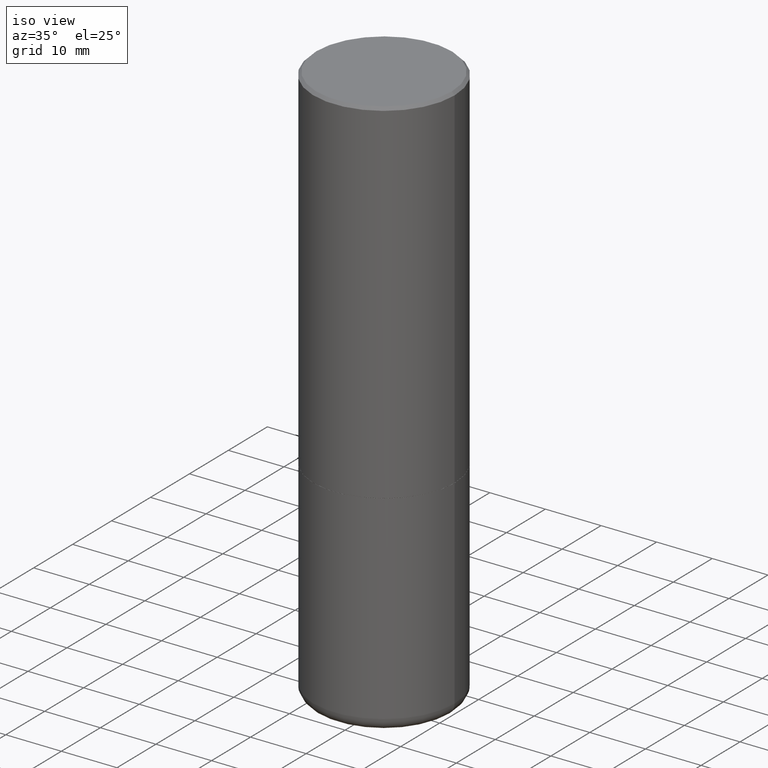
[diagram: clean part render]
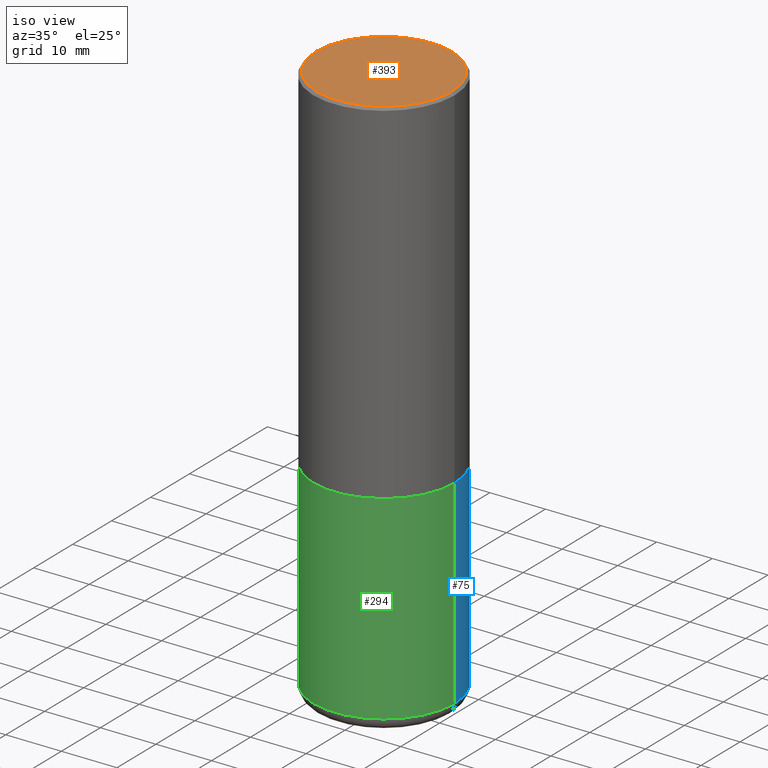
[diagram: same view with three faces highlighted in distinct colors, each labeled with its STEP entity id]
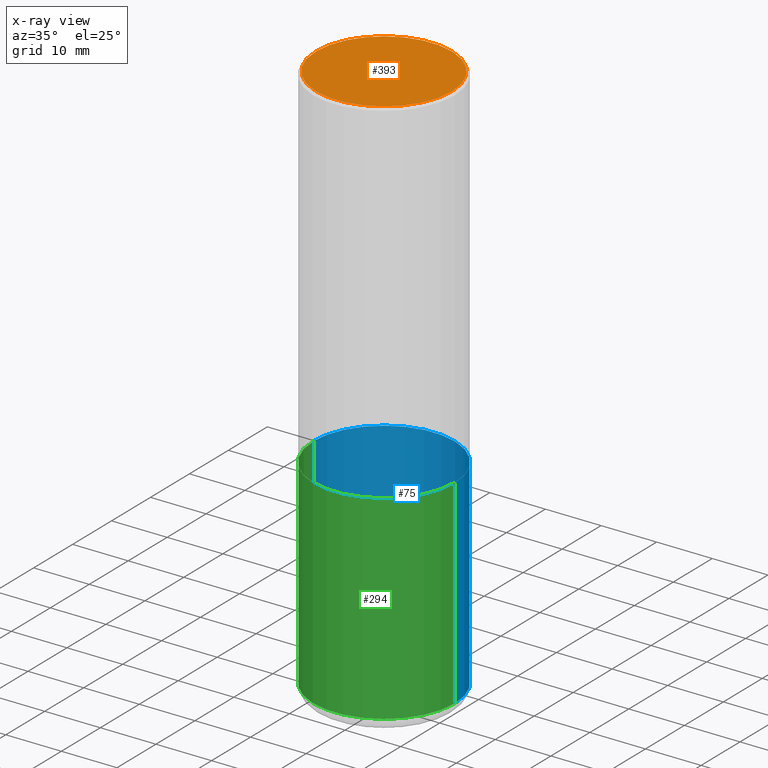
[diagram: x-ray of the same camera — body ghosted, the three highlighted faces saturated]
A machine part, iso view with three faces highlighted in distinct colors.
The next image is the same camera in x-ray (body ghosted, the three faces saturated) — at least one of them is partly hidden behind the body in this view.
Their STEP definitions:

[orange] entity #393 — the highlighted planar face has unit normal (0, -0, -1).
#9 = DIRECTION ( 'NONE',  ( -2.445468806185136597E-29, 3.491481338843145583E-15, 1.000000000000000000 ) ) ;
#18 = CARTESIAN_POINT ( 'NONE',  ( 3.351822085289405181E-15, 0.4799999999999996492, -1.669508273909558064E-15 ) ) ;
#35 = ORIENTED_EDGE ( 'NONE', *, *, #331, .T. ) ;
#47 = CARTESIAN_POINT ( 'NONE',  ( -0.4799999999999996492, 3.386736898677836830E-15, 1.280553747027767124E-17 ) ) ;
#54 = EDGE_LOOP ( 'NONE', ( #35, #151 ) ) ;
#67 = DIRECTION ( 'NONE',  ( -2.445468806185136597E-29, 3.491481338843145583E-15, 1.000000000000000000 ) ) ;
#82 = PLANE ( 'NONE',  #397 ) ;
#100 = VERTEX_POINT ( 'NONE', #47 ) ;
#120 = AXIS2_PLACEMENT_3D ( 'NONE', #377, #9, #139 ) ;
#139 = DIRECTION ( 'NONE',  ( 1.000000000000000000, -6.982962677686267499E-15, 4.876036955247132767E-29 ) ) ;
#151 = ORIENTED_EDGE ( 'NONE', *, *, #263, .T. ) ;
#184 = FACE_OUTER_BOUND ( 'NONE', #54, .T. ) ;
#188 = DIRECTION ( 'NONE',  ( 2.438088387897960049E-29, -3.491481338843145188E-15, -1.000000000000000000 ) ) ;
#199 = AXIS2_PLACEMENT_3D ( 'NONE', #269, #67, #327 ) ;
#263 = EDGE_CURVE ( 'NONE', #340, #100, #315, .T. ) ;
#269 = CARTESIAN_POINT ( 'NONE',  ( -3.131554243005659264E-46, 4.471029511141341874E-32, 1.280553747030123384E-17 ) ) ;
#315 = CIRCLE ( 'NONE', #199, 0.4799999999999996492 ) ;
#327 = DIRECTION ( 'NONE',  ( 1.000000000000000000, -6.982962677686267499E-15, 4.876036955247132767E-29 ) ) ;
#331 = EDGE_CURVE ( 'NONE', #100, #340, #414, .T. ) ;
#338 = CARTESIAN_POINT ( 'NONE',  ( 0.4799999999999996492, -3.396558832296479338E-15, 1.280553747032483033E-17 ) ) ;
#340 = VERTEX_POINT ( 'NONE', #338 ) ;
#377 = CARTESIAN_POINT ( 'NONE',  ( -3.131554243005659264E-46, 4.471029511141341874E-32, 1.280553747030123384E-17 ) ) ;
#387 = DIRECTION ( 'NONE',  ( -1.000000000000000000, 6.982962677686265922E-15, -4.876176775795935793E-29 ) ) ;
#393 = ADVANCED_FACE ( 'NONE', ( #184 ), #82, .F. ) ;
#397 = AXIS2_PLACEMENT_3D ( 'NONE', #18, #188, #387 ) ;
#414 = CIRCLE ( 'NONE', #120, 0.4799999999999996492 ) ;

[blue] entity #75 — the highlighted cylindrical surface (partial cylindrical patch) has radius 12.7 mm, axis along (-0, 0, 1).
#12 = CARTESIAN_POINT ( 'NONE',  ( 0.000000000000000000, 0.000000000000000000, 0.000000000000000000 ) ) ;
#38 = DIRECTION ( 'NONE',  ( 1.000000000000000000, -6.982962677686266711E-15, 0.000000000000000000 ) ) ;
#57 = ORIENTED_EDGE ( 'NONE', *, *, #425, .T. ) ;
#75 = ADVANCED_FACE ( 'NONE', ( #407 ), #343, .T. ) ;
#80 = DIRECTION ( 'NONE',  ( 1.000000000000000000, -6.982962677686269077E-15, 0.000000000000000000 ) ) ;
#99 = VECTOR ( 'NONE', #312, 39.37007874015748143 ) ;
#107 = DIRECTION ( 'NONE',  ( -2.445468806185136597E-29, 3.491481338843145583E-15, 1.000000000000000000 ) ) ;
#144 = EDGE_CURVE ( 'NONE', #287, #253, #339, .T. ) ;
#147 = CARTESIAN_POINT ( 'NONE',  ( 9.562084660884571289E-29, -1.365212268072139138E-14, -3.910123341872087988 ) ) ;
#161 = AXIS2_PLACEMENT_3D ( 'NONE', #147, #174, #38 ) ;
#174 = DIRECTION ( 'NONE',  ( -2.445468806185136597E-29, 3.491481338843145583E-15, 1.000000000000000000 ) ) ;
#190 = LINE ( 'NONE', #220, #242 ) ;
#195 = EDGE_CURVE ( 'NONE', #253, #314, #275, .T. ) ;
#197 = ORIENTED_EDGE ( 'NONE', *, *, #195, .F. ) ;
#200 = EDGE_LOOP ( 'NONE', ( #380, #57, #197, #296 ) ) ;
#220 = CARTESIAN_POINT ( 'NONE',  ( -0.5000000000000000000, 3.552713678800500929E-15, -2.459467545127452891E-29 ) ) ;
#241 = CARTESIAN_POINT ( 'NONE',  ( -0.5000000000000000000, -7.637699335114127230E-15, -3.910123341872087988 ) ) ;
#242 = VECTOR ( 'NONE', #346, 39.37007874015748143 ) ;
#245 = CARTESIAN_POINT ( 'NONE',  ( 6.113672015462842613E-29, -8.728703347107864943E-15, -2.500000000000000000 ) ) ;
#252 = EDGE_CURVE ( 'NONE', #287, #313, #403, .T. ) ;
#253 = VERTEX_POINT ( 'NONE', #442 ) ;
#275 = CIRCLE ( 'NONE', #364, 0.5000000000000000000 ) ;
#277 = CARTESIAN_POINT ( 'NONE',  ( 0.5000000000000000000, -3.491481338843133355E-15, 2.438088387897967896E-29 ) ) ;
#287 = VERTEX_POINT ( 'NONE', #401 ) ;
#296 = ORIENTED_EDGE ( 'NONE', *, *, #144, .F. ) ;
#307 = DIRECTION ( 'NONE',  ( 1.000000000000000000, -6.982962677686266711E-15, 4.876176775795935793E-29 ) ) ;
#312 = DIRECTION ( 'NONE',  ( -2.445468806185136877E-29, 3.491481338843145188E-15, 1.000000000000000000 ) ) ;
#313 = VERTEX_POINT ( 'NONE', #241 ) ;
#314 = VERTEX_POINT ( 'NONE', #370 ) ;
#332 = AXIS2_PLACEMENT_3D ( 'NONE', #12, #107, #307 ) ;
#339 = LINE ( 'NONE', #277, #99 ) ;
#343 = CYLINDRICAL_SURFACE ( 'NONE', #332, 0.5000000000000000000 ) ;
#346 = DIRECTION ( 'NONE',  ( -2.445468806185136877E-29, 3.491481338843145188E-15, 1.000000000000000000 ) ) ;
#364 = AXIS2_PLACEMENT_3D ( 'NONE', #245, #382, #80 ) ;
#370 = CARTESIAN_POINT ( 'NONE',  ( -0.5000000000000000000, -7.637699335114127230E-15, -2.500000000000000000 ) ) ;
#380 = ORIENTED_EDGE ( 'NONE', *, *, #252, .T. ) ;
#382 = DIRECTION ( 'NONE',  ( -2.445468806185136597E-29, 3.491481338843145583E-15, 1.000000000000000000 ) ) ;
#401 = CARTESIAN_POINT ( 'NONE',  ( 0.5000000000000000000, -1.714360401956452473E-14, -3.910123341872087988 ) ) ;
#403 = CIRCLE ( 'NONE', #161, 0.5000000000000000000 ) ;
#407 = FACE_OUTER_BOUND ( 'NONE', #200, .T. ) ;
#425 = EDGE_CURVE ( 'NONE', #313, #314, #190, .T. ) ;
#442 = CARTESIAN_POINT ( 'NONE',  ( 0.5000000000000000000, -1.222018468595099830E-14, -2.500000000000000000 ) ) ;

[green] entity #294 — the highlighted cylindrical surface (partial cylindrical patch) has radius 12.7 mm, axis along (-0, 0, 1).
#5 = AXIS2_PLACEMENT_3D ( 'NONE', #48, #201, #128 ) ;
#11 = FACE_OUTER_BOUND ( 'NONE', #290, .T. ) ;
#13 = CIRCLE ( 'NONE', #323, 0.5000000000000000000 ) ;
#40 = DIRECTION ( 'NONE',  ( -2.445468806185136597E-29, 3.491481338843145583E-15, 1.000000000000000000 ) ) ;
#48 = CARTESIAN_POINT ( 'NONE',  ( 9.562084660884571289E-29, -1.365212268072139138E-14, -3.910123341872087988 ) ) ;
#61 = ORIENTED_EDGE ( 'NONE', *, *, #280, .T. ) ;
#76 = CARTESIAN_POINT ( 'NONE',  ( 6.113672015462842613E-29, -8.728703347107864943E-15, -2.500000000000000000 ) ) ;
#99 = VECTOR ( 'NONE', #312, 39.37007874015748143 ) ;
#123 = AXIS2_PLACEMENT_3D ( 'NONE', #167, #40, #335 ) ;
#128 = DIRECTION ( 'NONE',  ( 1.000000000000000000, -6.982962677686266711E-15, 0.000000000000000000 ) ) ;
#144 = EDGE_CURVE ( 'NONE', #287, #253, #339, .T. ) ;
#164 = ORIENTED_EDGE ( 'NONE', *, *, #297, .F. ) ;
#167 = CARTESIAN_POINT ( 'NONE',  ( 0.000000000000000000, 0.000000000000000000, 0.000000000000000000 ) ) ;
#190 = LINE ( 'NONE', #220, #242 ) ;
#201 = DIRECTION ( 'NONE',  ( -2.445468806185136597E-29, 3.491481338843145583E-15, 1.000000000000000000 ) ) ;
#212 = DIRECTION ( 'NONE',  ( -2.445468806185136597E-29, 3.491481338843145583E-15, 1.000000000000000000 ) ) ;
#220 = CARTESIAN_POINT ( 'NONE',  ( -0.5000000000000000000, 3.552713678800500929E-15, -2.459467545127452891E-29 ) ) ;
#232 = CIRCLE ( 'NONE', #5, 0.5000000000000000000 ) ;
#241 = CARTESIAN_POINT ( 'NONE',  ( -0.5000000000000000000, -7.637699335114127230E-15, -3.910123341872087988 ) ) ;
#242 = VECTOR ( 'NONE', #346, 39.37007874015748143 ) ;
#253 = VERTEX_POINT ( 'NONE', #442 ) ;
#277 = CARTESIAN_POINT ( 'NONE',  ( 0.5000000000000000000, -3.491481338843133355E-15, 2.438088387897967896E-29 ) ) ;
#280 = EDGE_CURVE ( 'NONE', #313, #287, #232, .T. ) ;
#287 = VERTEX_POINT ( 'NONE', #401 ) ;
#290 = EDGE_LOOP ( 'NONE', ( #298, #61, #326, #164 ) ) ;
#294 = ADVANCED_FACE ( 'NONE', ( #11 ), #306, .T. ) ;
#297 = EDGE_CURVE ( 'NONE', #314, #253, #13, .T. ) ;
#298 = ORIENTED_EDGE ( 'NONE', *, *, #425, .F. ) ;
#306 = CYLINDRICAL_SURFACE ( 'NONE', #123, 0.5000000000000000000 ) ;
#312 = DIRECTION ( 'NONE',  ( -2.445468806185136877E-29, 3.491481338843145188E-15, 1.000000000000000000 ) ) ;
#313 = VERTEX_POINT ( 'NONE', #241 ) ;
#314 = VERTEX_POINT ( 'NONE', #370 ) ;
#323 = AXIS2_PLACEMENT_3D ( 'NONE', #76, #212, #373 ) ;
#326 = ORIENTED_EDGE ( 'NONE', *, *, #144, .T. ) ;
#335 = DIRECTION ( 'NONE',  ( 1.000000000000000000, -6.982962677686266711E-15, 4.876176775795935793E-29 ) ) ;
#339 = LINE ( 'NONE', #277, #99 ) ;
#346 = DIRECTION ( 'NONE',  ( -2.445468806185136877E-29, 3.491481338843145188E-15, 1.000000000000000000 ) ) ;
#370 = CARTESIAN_POINT ( 'NONE',  ( -0.5000000000000000000, -7.637699335114127230E-15, -2.500000000000000000 ) ) ;
#373 = DIRECTION ( 'NONE',  ( 1.000000000000000000, -6.982962677686269077E-15, 0.000000000000000000 ) ) ;
#401 = CARTESIAN_POINT ( 'NONE',  ( 0.5000000000000000000, -1.714360401956452473E-14, -3.910123341872087988 ) ) ;
#425 = EDGE_CURVE ( 'NONE', #313, #314, #190, .T. ) ;
#442 = CARTESIAN_POINT ( 'NONE',  ( 0.5000000000000000000, -1.222018468595099830E-14, -2.500000000000000000 ) ) ;